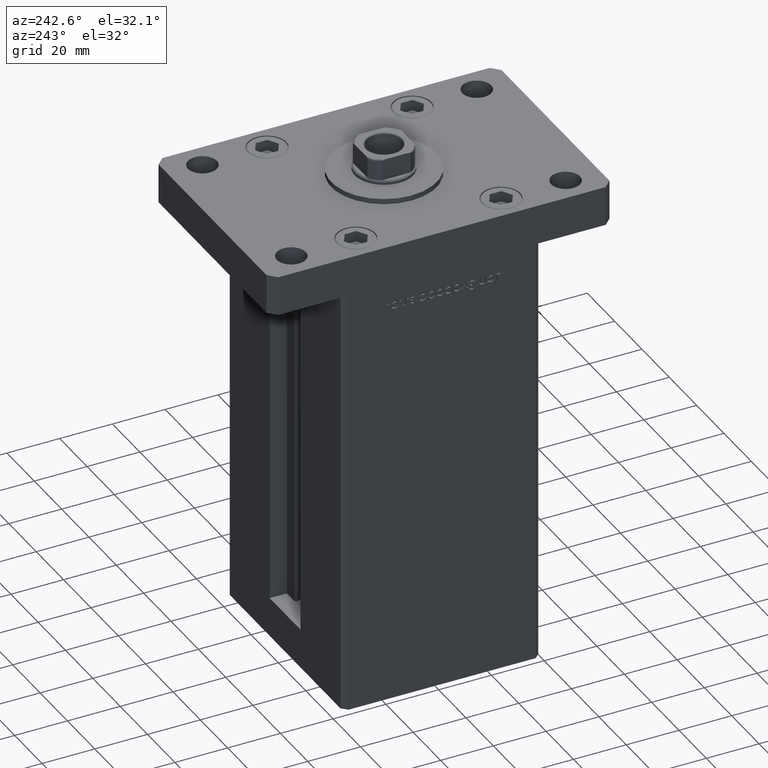
[diagram: clean part render]
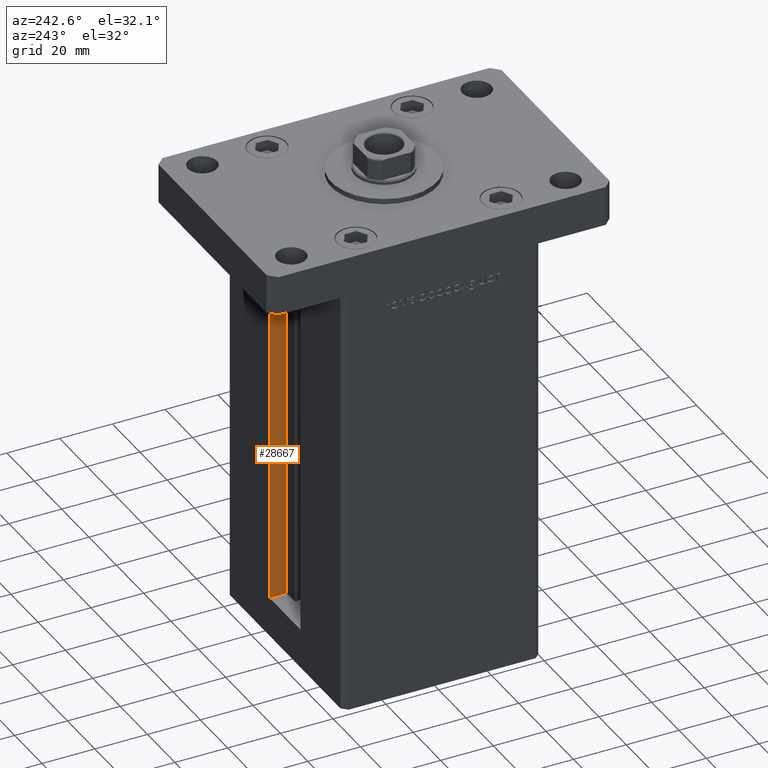
[diagram: same view with one face highlighted and labeled with its STEP entity id]
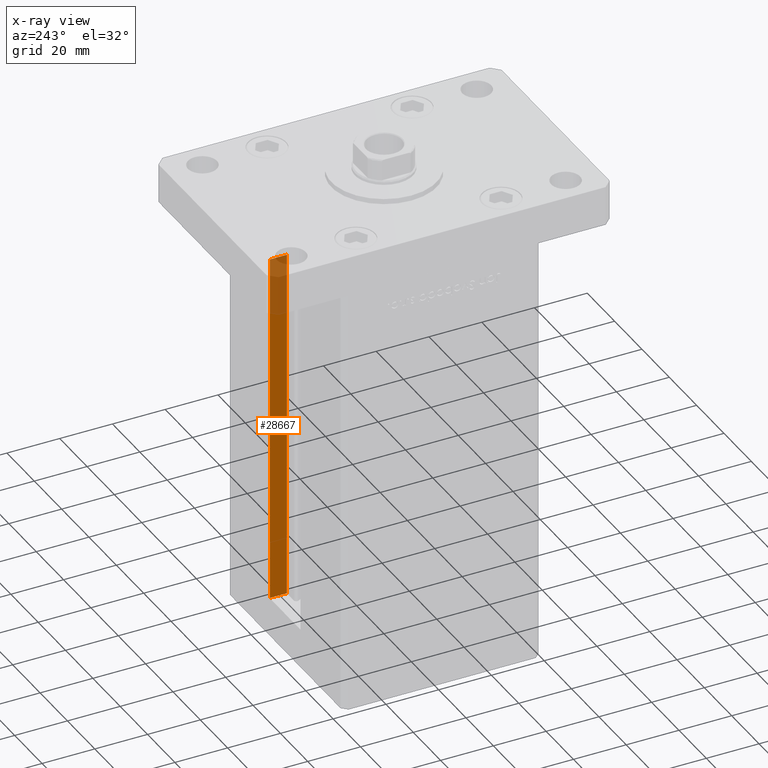
[diagram: x-ray of the same camera — body ghosted, the highlighted face saturated]
A machine part, auxiliary view. The second image highlights one B-rep face of the part: STEP entity #28667.
The next image is the same camera in x-ray: the body ghosted, the highlighted face saturated — about 17% of this face is hidden behind the body in this view.
In plain terms, the highlighted planar face has unit normal (1, 0, 0).
Its self-contained STEP definition (entity closure, byte-faithful):
#417 = DIRECTION ( 'NONE',  ( 1.000000000000000000, -0.000000000000000000, 0.000000000000000000 ) ) ;
#615 = CARTESIAN_POINT ( 'NONE',  ( 11.25000000000000000, 37.50000000000000000, 0.000000000000000000 ) ) ;
#637 = DIRECTION ( 'NONE',  ( -0.000000000000000000, -0.000000000000000000, 1.000000000000000000 ) ) ;
#4953 = CARTESIAN_POINT ( 'NONE',  ( 11.25000000000000000, 30.99999999999999289, 0.000000000000000000 ) ) ;
#6349 = CARTESIAN_POINT ( 'NONE',  ( 11.25000000000000000, 0.000000000000000000, 134.5000000000000000 ) ) ;
#8258 = VECTOR ( 'NONE', #637, 1000.000000000000000 ) ;
#10158 = EDGE_CURVE ( 'NONE', #27062, #37222, #12572, .T. ) ;
#11419 = ORIENTED_EDGE ( 'NONE', *, *, #36892, .F. ) ;
#12572 = LINE ( 'NONE', #615, #45377 ) ;
#13635 = DIRECTION ( 'NONE',  ( -0.000000000000000000, -0.000000000000000000, 1.000000000000000000 ) ) ;
#15520 = VECTOR ( 'NONE', #35356, 1000.000000000000000 ) ;
#17133 = EDGE_CURVE ( 'NONE', #37222, #21769, #19338, .T. ) ;
#17161 = DIRECTION ( 'NONE',  ( 0.000000000000000000, 1.000000000000000000, 0.000000000000000000 ) ) ;
#17491 = AXIS2_PLACEMENT_3D ( 'NONE', #45729, #417, #44647 ) ;
#19338 = LINE ( 'NONE', #6349, #15520 ) ;
#19406 = FACE_OUTER_BOUND ( 'NONE', #28880, .T. ) ;
#19593 = CARTESIAN_POINT ( 'NONE',  ( 11.25000000000000000, 30.99999999999999289, 0.000000000000000000 ) ) ;
#21176 = VECTOR ( 'NONE', #17161, 1000.000000000000000 ) ;
#21250 = LINE ( 'NONE', #37794, #8258 ) ;
#21769 = VERTEX_POINT ( 'NONE', #38540 ) ;
#21982 = ORIENTED_EDGE ( 'NONE', *, *, #42452, .T. ) ;
#27062 = VERTEX_POINT ( 'NONE', #42347 ) ;
#28667 = ADVANCED_FACE ( 'NONE', ( #19406 ), #35958, .F. ) ;
#28880 = EDGE_LOOP ( 'NONE', ( #35079, #11419, #21982, #30360 ) ) ;
#30360 = ORIENTED_EDGE ( 'NONE', *, *, #17133, .F. ) ;
#35079 = ORIENTED_EDGE ( 'NONE', *, *, #10158, .F. ) ;
#35356 = DIRECTION ( 'NONE',  ( -0.000000000000000000, -1.000000000000000000, 0.000000000000000000 ) ) ;
#35958 = PLANE ( 'NONE',  #17491 ) ;
#36892 = EDGE_CURVE ( 'NONE', #50283, #27062, #45921, .T. ) ;
#37222 = VERTEX_POINT ( 'NONE', #46647 ) ;
#37794 = CARTESIAN_POINT ( 'NONE',  ( 11.25000000000000000, 30.99999999999999289, 0.000000000000000000 ) ) ;
#38540 = CARTESIAN_POINT ( 'NONE',  ( 11.25000000000000000, 30.99999999999999289, 134.5000000000000000 ) ) ;
#42347 = CARTESIAN_POINT ( 'NONE',  ( 11.25000000000000000, 37.50000000000000000, 0.000000000000000000 ) ) ;
#42452 = EDGE_CURVE ( 'NONE', #50283, #21769, #21250, .T. ) ;
#44647 = DIRECTION ( 'NONE',  ( 0.000000000000000000, 0.000000000000000000, -1.000000000000000000 ) ) ;
#45377 = VECTOR ( 'NONE', #13635, 1000.000000000000000 ) ;
#45729 = CARTESIAN_POINT ( 'NONE',  ( 11.25000000000000000, 30.99999999999999289, 0.000000000000000000 ) ) ;
#45921 = LINE ( 'NONE', #4953, #21176 ) ;
#46647 = CARTESIAN_POINT ( 'NONE',  ( 11.24999999999999289, 37.50000000000000000, 134.5000000000000000 ) ) ;
#50283 = VERTEX_POINT ( 'NONE', #19593 ) ;